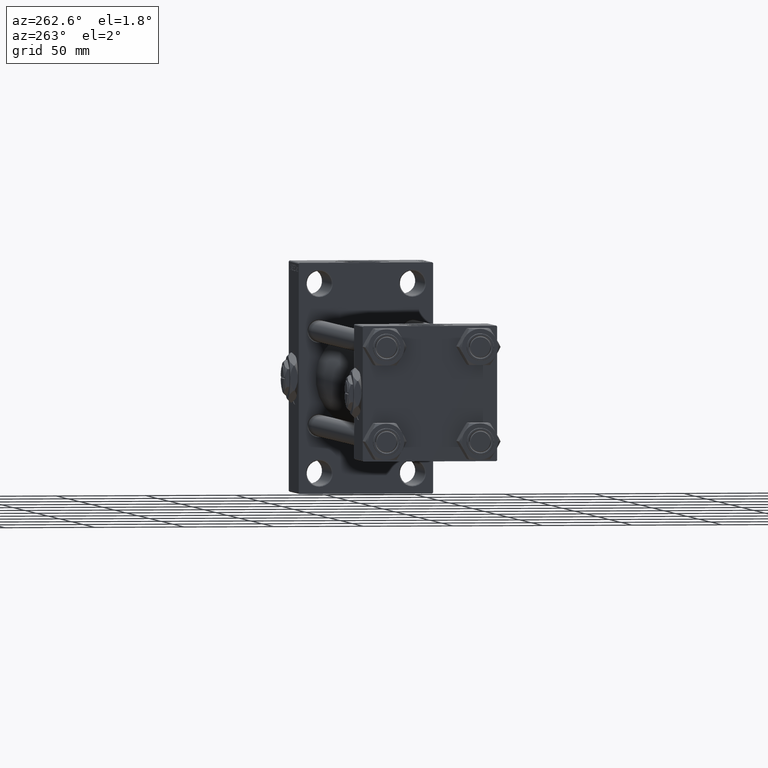
[diagram: clean part render]
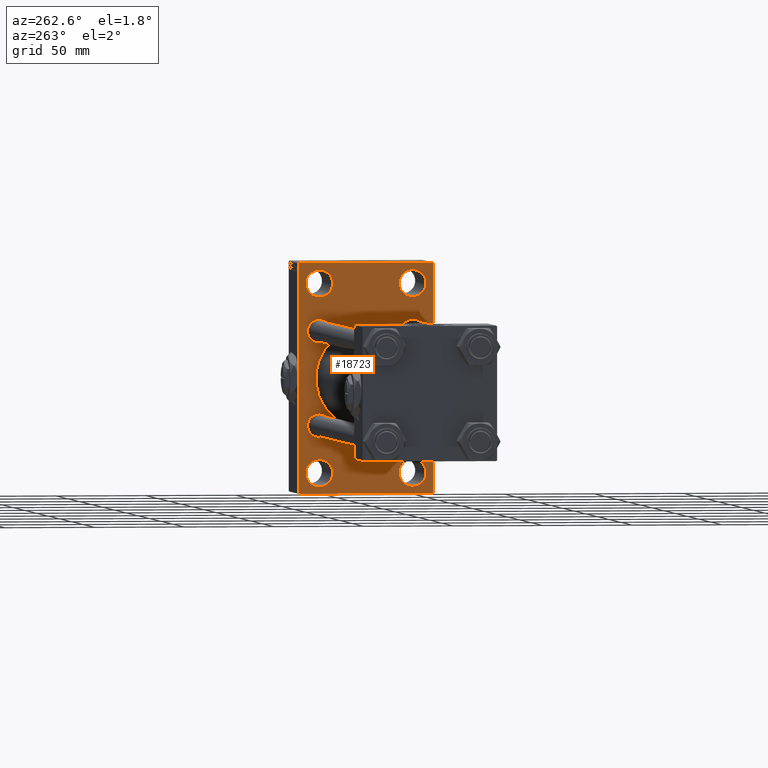
[diagram: same view with one face highlighted and labeled with its STEP entity id]
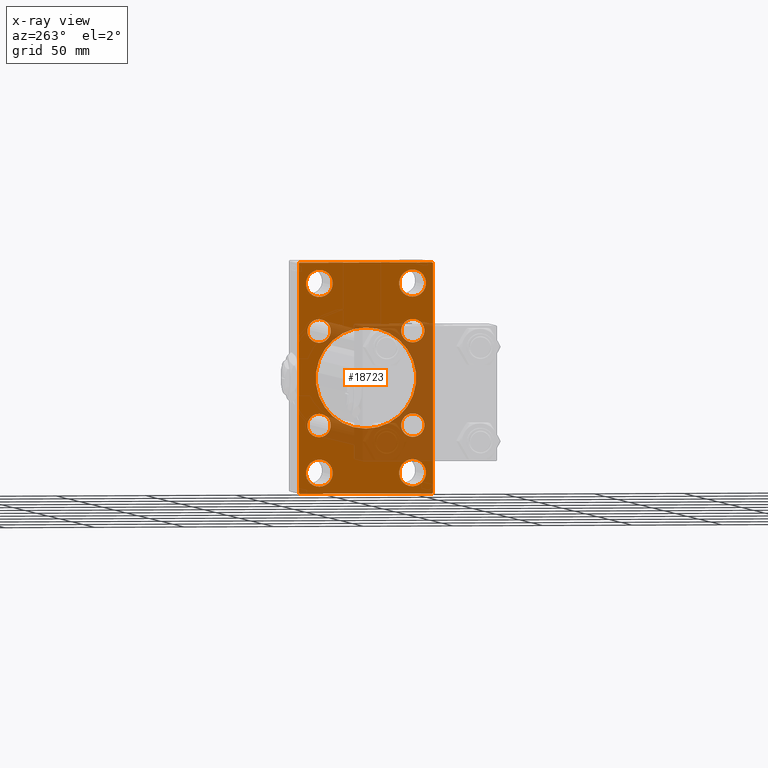
[diagram: x-ray of the same camera — body ghosted, the highlighted face saturated]
A machine part, auxiliary view. The second image highlights one B-rep face of the part: STEP entity #18723.
The next image is the same camera in x-ray: the body ghosted, the highlighted face saturated — about 30% of this face is hidden behind the body in this view.
In plain terms, the highlighted planar face has unit normal (-1, 0, 0).
Its self-contained STEP definition (entity closure, byte-faithful):
#217 = DIRECTION ( 'NONE',  ( 1.000000000000000000, 0.000000000000000000, 0.000000000000000000 ) ) ;
#381 = DIRECTION ( 'NONE',  ( 0.000000000000000000, 0.000000000000000000, 1.000000000000000000 ) ) ;
#444 = EDGE_LOOP ( 'NONE', ( #9979, #11166 ) ) ;
#739 = EDGE_CURVE ( 'NONE', #44991, #14748, #25745, .T. ) ;
#1747 = CARTESIAN_POINT ( 'NONE',  ( 274.9999999999999432, 26.14999999999999858, -32.65000000000001279 ) ) ;
#1751 = VECTOR ( 'NONE', #13129, 1000.000000000000114 ) ;
#2135 = EDGE_LOOP ( 'NONE', ( #35034, #27838 ) ) ;
#2242 = ORIENTED_EDGE ( 'NONE', *, *, #29462, .T. ) ;
#2479 = FACE_BOUND ( 'NONE', #23779, .T. ) ;
#2560 = CARTESIAN_POINT ( 'NONE',  ( 274.9999999999999432, 26.14999999999999858, 26.15000000000000213 ) ) ;
#2808 = DIRECTION ( 'NONE',  ( 0.000000000000000000, -1.000000000000000000, -1.850371707708594563E-16 ) ) ;
#3053 = ORIENTED_EDGE ( 'NONE', *, *, #14424, .T. ) ;
#3193 = EDGE_CURVE ( 'NONE', #5221, #41373, #15226, .T. ) ;
#3204 = CARTESIAN_POINT ( 'NONE',  ( 274.9999999999999432, -25.99999999999999645, -52.49999999999999289 ) ) ;
#3397 = VERTEX_POINT ( 'NONE', #1747 ) ;
#3499 = DIRECTION ( 'NONE',  ( 0.000000000000000000, 0.000000000000000000, 1.000000000000000000 ) ) ;
#4043 = ORIENTED_EDGE ( 'NONE', *, *, #739, .T. ) ;
#4131 = DIRECTION ( 'NONE',  ( 1.000000000000000000, -0.000000000000000000, 0.000000000000000000 ) ) ;
#4154 = DIRECTION ( 'NONE',  ( 0.000000000000000000, 0.000000000000000000, 1.000000000000000000 ) ) ;
#4407 = DIRECTION ( 'NONE',  ( 0.000000000000000000, -0.7071067811865574537, 0.7071067811865376918 ) ) ;
#4644 = CARTESIAN_POINT ( 'NONE',  ( 274.9999999999999432, 26.00000000000000000, -52.49999999999999289 ) ) ;
#5130 = DIRECTION ( 'NONE',  ( 1.000000000000000000, -0.000000000000000000, 0.000000000000000000 ) ) ;
#5221 = VERTEX_POINT ( 'NONE', #35504 ) ;
#5337 = VERTEX_POINT ( 'NONE', #43702 ) ;
#5732 = EDGE_CURVE ( 'NONE', #39294, #16948, #22376, .T. ) ;
#6065 = EDGE_LOOP ( 'NONE', ( #31943, #20936 ) ) ;
#6197 = CARTESIAN_POINT ( 'NONE',  ( 274.9999999999999432, 37.50000000000000000, 63.99999999999998579 ) ) ;
#6233 = PLANE ( 'NONE',  #28230 ) ;
#6478 = FACE_BOUND ( 'NONE', #43854, .T. ) ;
#6716 = CARTESIAN_POINT ( 'NONE',  ( 274.9999999999999432, -26.14999999999999147, 26.15000000000000924 ) ) ;
#6985 = CARTESIAN_POINT ( 'NONE',  ( 274.9999999999999432, 26.14999999999999858, 26.15000000000000213 ) ) ;
#7059 = CARTESIAN_POINT ( 'NONE',  ( 274.9999999999999432, 37.49999999999999289, -64.00000000000000000 ) ) ;
#7248 = ORIENTED_EDGE ( 'NONE', *, *, #13654, .T. ) ;
#7738 = VERTEX_POINT ( 'NONE', #42188 ) ;
#8182 = EDGE_LOOP ( 'NONE', ( #9194, #23161 ) ) ;
#8347 = CARTESIAN_POINT ( 'NONE',  ( 274.9999999999999432, 26.14999999999999858, -26.15000000000000213 ) ) ;
#8535 = CIRCLE ( 'NONE', #30807, 6.500000000000008882 ) ;
#9194 = ORIENTED_EDGE ( 'NONE', *, *, #46682, .T. ) ;
#9242 = DIRECTION ( 'NONE',  ( -0.000000000000000000, 0.000000000000000000, 1.000000000000000000 ) ) ;
#9285 = CARTESIAN_POINT ( 'NONE',  ( 274.9999999999999432, -25.99999999999999645, 52.50000000000000000 ) ) ;
#9315 = AXIS2_PLACEMENT_3D ( 'NONE', #8347, #23045, #31513 ) ;
#9705 = DIRECTION ( 'NONE',  ( 0.000000000000000000, 0.000000000000000000, 1.000000000000000000 ) ) ;
#9979 = ORIENTED_EDGE ( 'NONE', *, *, #10686, .T. ) ;
#10401 = VERTEX_POINT ( 'NONE', #23009 ) ;
#10686 = EDGE_CURVE ( 'NONE', #41829, #10401, #24132, .T. ) ;
#11166 = ORIENTED_EDGE ( 'NONE', *, *, #14369, .T. ) ;
#11309 = EDGE_LOOP ( 'NONE', ( #24708, #12634 ) ) ;
#11701 = CIRCLE ( 'NONE', #9315, 6.500000000000008882 ) ;
#11742 = CARTESIAN_POINT ( 'NONE',  ( 274.9999999999999432, -26.14999999999999147, -26.15000000000000924 ) ) ;
#11953 = ORIENTED_EDGE ( 'NONE', *, *, #40853, .T. ) ;
#11964 = DIRECTION ( 'NONE',  ( 1.000000000000000000, -0.000000000000000000, 0.000000000000000000 ) ) ;
#12164 = CARTESIAN_POINT ( 'NONE',  ( 274.9999999999999432, -26.14999999999999147, 19.65000000000000213 ) ) ;
#12358 = DIRECTION ( 'NONE',  ( 0.000000000000000000, 0.000000000000000000, 1.000000000000000000 ) ) ;
#12414 = DIRECTION ( 'NONE',  ( 0.000000000000000000, 0.000000000000000000, 1.000000000000000000 ) ) ;
#12543 = AXIS2_PLACEMENT_3D ( 'NONE', #3204, #48820, #9705 ) ;
#12634 = ORIENTED_EDGE ( 'NONE', *, *, #37262, .T. ) ;
#12885 = CARTESIAN_POINT ( 'NONE',  ( 274.9999999999999432, -25.99999999999999645, -59.99999999999994316 ) ) ;
#12930 = LINE ( 'NONE', #35391, #34749 ) ;
#13129 = DIRECTION ( 'NONE',  ( 0.000000000000000000, 0.7071067811865474617, -0.7071067811865474617 ) ) ;
#13246 = CARTESIAN_POINT ( 'NONE',  ( 274.9999999999999432, 8.269258236473784371E-16, -28.00000000000000000 ) ) ;
#13417 = VERTEX_POINT ( 'NONE', #34612 ) ;
#13647 = CARTESIAN_POINT ( 'NONE',  ( 274.9999999999999432, -26.14999999999999147, -26.15000000000000924 ) ) ;
#13654 = EDGE_CURVE ( 'NONE', #45117, #39294, #47291, .T. ) ;
#13781 = DIRECTION ( 'NONE',  ( 0.000000000000000000, 0.000000000000000000, 1.000000000000000000 ) ) ;
#14289 = CIRCLE ( 'NONE', #47750, 6.500000000000008882 ) ;
#14369 = EDGE_CURVE ( 'NONE', #10401, #41829, #45594, .T. ) ;
#14424 = EDGE_CURVE ( 'NONE', #44718, #7738, #20892, .T. ) ;
#14729 = CARTESIAN_POINT ( 'NONE',  ( 274.9999999999999432, -2.602085213965210642E-15, 28.00000000000000000 ) ) ;
#14748 = VERTEX_POINT ( 'NONE', #48959 ) ;
#14831 = VECTOR ( 'NONE', #23672, 1000.000000000000000 ) ;
#14935 = DIRECTION ( 'NONE',  ( 0.000000000000000000, 0.000000000000000000, 1.000000000000000000 ) ) ;
#15226 = CIRCLE ( 'NONE', #39127, 7.499999999999951150 ) ;
#15409 = DIRECTION ( 'NONE',  ( 0.000000000000000000, 0.000000000000000000, -1.000000000000000000 ) ) ;
#15834 = ORIENTED_EDGE ( 'NONE', *, *, #16264, .T. ) ;
#16080 = EDGE_CURVE ( 'NONE', #21273, #24825, #33716, .T. ) ;
#16134 = AXIS2_PLACEMENT_3D ( 'NONE', #19395, #24610, #24127 ) ;
#16264 = EDGE_CURVE ( 'NONE', #14748, #35852, #35557, .T. ) ;
#16451 = LINE ( 'NONE', #38660, #28325 ) ;
#16842 = CARTESIAN_POINT ( 'NONE',  ( 274.9999999999999432, -50.49999999999945999, -50.50000000000086686 ) ) ;
#16856 = EDGE_LOOP ( 'NONE', ( #4043, #15834, #34059, #28206, #17391, #7248, #35580, #29242 ) ) ;
#16948 = VERTEX_POINT ( 'NONE', #29414 ) ;
#16971 = VECTOR ( 'NONE', #4407, 999.9999999999998863 ) ;
#17028 = EDGE_CURVE ( 'NONE', #30360, #35745, #25730, .T. ) ;
#17188 = ORIENTED_EDGE ( 'NONE', *, *, #17372, .T. ) ;
#17347 = AXIS2_PLACEMENT_3D ( 'NONE', #13647, #29353, #17628 ) ;
#17372 = EDGE_CURVE ( 'NONE', #35745, #30360, #21814, .T. ) ;
#17391 = ORIENTED_EDGE ( 'NONE', *, *, #27687, .F. ) ;
#17628 = DIRECTION ( 'NONE',  ( 0.000000000000000000, 0.000000000000000000, 1.000000000000000000 ) ) ;
#17677 = CARTESIAN_POINT ( 'NONE',  ( 274.9999999999999432, 26.14999999999999858, 32.65000000000001990 ) ) ;
#17680 = FACE_BOUND ( 'NONE', #42406, .T. ) ;
#17990 = AXIS2_PLACEMENT_3D ( 'NONE', #34372, #217, #15409 ) ;
#18166 = DIRECTION ( 'NONE',  ( 1.000000000000000000, -0.000000000000000000, 0.000000000000000000 ) ) ;
#18216 = CARTESIAN_POINT ( 'NONE',  ( 274.9999999999999432, -26.14999999999999147, 26.15000000000000924 ) ) ;
#18433 = ORIENTED_EDGE ( 'NONE', *, *, #34951, .T. ) ;
#18519 = CARTESIAN_POINT ( 'NONE',  ( 274.9999999999999432, 26.00000000000000000, -45.00000000000004263 ) ) ;
#18711 = DIRECTION ( 'NONE',  ( 1.000000000000000000, -0.000000000000000000, 0.000000000000000000 ) ) ;
#18723 = ADVANCED_FACE ( 'NONE', ( #29404, #36637, #2479, #6478, #24924, #17680, #21672, #48348, #36144, #28912 ), #6233, .T. ) ;
#19395 = CARTESIAN_POINT ( 'NONE',  ( 274.9999999999999432, -25.99999999999999645, 52.50000000000000000 ) ) ;
#19807 = DIRECTION ( 'NONE',  ( 0.000000000000000000, 0.000000000000000000, -1.000000000000000000 ) ) ;
#20076 = VECTOR ( 'NONE', #37588, 1000.000000000000000 ) ;
#20892 = CIRCLE ( 'NONE', #39232, 7.499999999999951150 ) ;
#20936 = ORIENTED_EDGE ( 'NONE', *, *, #47563, .T. ) ;
#20971 = CARTESIAN_POINT ( 'NONE',  ( 274.9999999999999432, -37.49999999999999289, 63.49999999999991473 ) ) ;
#21148 = AXIS2_PLACEMENT_3D ( 'NONE', #30409, #11964, #3499 ) ;
#21273 = VERTEX_POINT ( 'NONE', #24906 ) ;
#21350 = CARTESIAN_POINT ( 'NONE',  ( 274.9999999999999432, 50.49999999999996447, 50.49999999999996447 ) ) ;
#21611 = CARTESIAN_POINT ( 'NONE',  ( 274.9999999999999432, -37.49999999999999289, -63.49999999999997158 ) ) ;
#21672 = FACE_BOUND ( 'NONE', #8182, .T. ) ;
#21814 = CIRCLE ( 'NONE', #32951, 6.500000000000008882 ) ;
#22098 = AXIS2_PLACEMENT_3D ( 'NONE', #30816, #34073, #4154 ) ;
#22133 = VERTEX_POINT ( 'NONE', #14729 ) ;
#22376 = LINE ( 'NONE', #6197, #20076 ) ;
#22617 = VERTEX_POINT ( 'NONE', #25785 ) ;
#23009 = CARTESIAN_POINT ( 'NONE',  ( 274.9999999999999432, -25.99999999999999645, 45.00000000000004974 ) ) ;
#23045 = DIRECTION ( 'NONE',  ( 1.000000000000000000, -0.000000000000000000, 0.000000000000000000 ) ) ;
#23064 = CARTESIAN_POINT ( 'NONE',  ( 274.9999999999999432, 26.14999999999999858, -26.15000000000000213 ) ) ;
#23161 = ORIENTED_EDGE ( 'NONE', *, *, #43208, .T. ) ;
#23672 = DIRECTION ( 'NONE',  ( 0.000000000000000000, 0.000000000000000000, -1.000000000000000000 ) ) ;
#23684 = CIRCLE ( 'NONE', #12543, 7.499999999999951150 ) ;
#23692 = DIRECTION ( 'NONE',  ( -0.000000000000000000, 0.7071067811865524577, 0.7071067811865426878 ) ) ;
#23779 = EDGE_LOOP ( 'NONE', ( #11953, #27171 ) ) ;
#23993 = DIRECTION ( 'NONE',  ( 0.000000000000000000, 0.000000000000000000, 1.000000000000000000 ) ) ;
#24127 = DIRECTION ( 'NONE',  ( 0.000000000000000000, 0.000000000000000000, 1.000000000000000000 ) ) ;
#24132 = CIRCLE ( 'NONE', #42421, 7.499999999999951150 ) ;
#24610 = DIRECTION ( 'NONE',  ( 1.000000000000000000, -0.000000000000000000, 0.000000000000000000 ) ) ;
#24708 = ORIENTED_EDGE ( 'NONE', *, *, #31367, .T. ) ;
#24825 = VERTEX_POINT ( 'NONE', #12885 ) ;
#24906 = CARTESIAN_POINT ( 'NONE',  ( 274.9999999999999432, -25.99999999999999645, -45.00000000000004263 ) ) ;
#24924 = FACE_BOUND ( 'NONE', #25245, .T. ) ;
#25107 = CARTESIAN_POINT ( 'NONE',  ( 274.9999999999999432, -25.99999999999999645, -52.49999999999999289 ) ) ;
#25227 = CIRCLE ( 'NONE', #44332, 6.500000000000008882 ) ;
#25245 = EDGE_LOOP ( 'NONE', ( #18433, #28687 ) ) ;
#25319 = DIRECTION ( 'NONE',  ( -0.000000000000000000, -0.7071067811865573427, -0.7071067811865378028 ) ) ;
#25646 = EDGE_CURVE ( 'NONE', #28860, #42251, #25227, .T. ) ;
#25730 = CIRCLE ( 'NONE', #32915, 6.500000000000008882 ) ;
#25745 = LINE ( 'NONE', #7059, #34254 ) ;
#25785 = CARTESIAN_POINT ( 'NONE',  ( 274.9999999999999432, -26.14999999999999147, -32.65000000000001990 ) ) ;
#25867 = EDGE_CURVE ( 'NONE', #28332, #5337, #16451, .T. ) ;
#25952 = DIRECTION ( 'NONE',  ( 0.000000000000000000, 0.000000000000000000, 1.000000000000000000 ) ) ;
#26284 = EDGE_CURVE ( 'NONE', #41576, #22133, #39502, .T. ) ;
#26402 = CARTESIAN_POINT ( 'NONE',  ( 274.9999999999999432, 37.50000000000000000, 63.49999999999992895 ) ) ;
#26521 = CARTESIAN_POINT ( 'NONE',  ( 274.9999999999999432, 26.14999999999999858, -19.64999999999999503 ) ) ;
#27171 = ORIENTED_EDGE ( 'NONE', *, *, #3193, .T. ) ;
#27632 = EDGE_CURVE ( 'NONE', #28332, #35852, #36106, .T. ) ;
#27687 = EDGE_CURVE ( 'NONE', #45117, #5337, #12930, .T. ) ;
#27783 = DIRECTION ( 'NONE',  ( 1.000000000000000000, 0.000000000000000000, 0.000000000000000000 ) ) ;
#27838 = ORIENTED_EDGE ( 'NONE', *, *, #26284, .T. ) ;
#28206 = ORIENTED_EDGE ( 'NONE', *, *, #25867, .T. ) ;
#28230 = AXIS2_PLACEMENT_3D ( 'NONE', #32161, #47859, #9242 ) ;
#28325 = VECTOR ( 'NONE', #23692, 1000.000000000000000 ) ;
#28332 = VERTEX_POINT ( 'NONE', #20971 ) ;
#28687 = ORIENTED_EDGE ( 'NONE', *, *, #25646, .T. ) ;
#28860 = VERTEX_POINT ( 'NONE', #12164 ) ;
#28912 = FACE_OUTER_BOUND ( 'NONE', #16856, .T. ) ;
#28931 = AXIS2_PLACEMENT_3D ( 'NONE', #25107, #40329, #44305 ) ;
#29122 = CARTESIAN_POINT ( 'NONE',  ( 274.9999999999999432, 36.99999999999999289, -64.00000000000000000 ) ) ;
#29242 = ORIENTED_EDGE ( 'NONE', *, *, #46434, .T. ) ;
#29353 = DIRECTION ( 'NONE',  ( 1.000000000000000000, -0.000000000000000000, 0.000000000000000000 ) ) ;
#29404 = FACE_BOUND ( 'NONE', #444, .T. ) ;
#29414 = CARTESIAN_POINT ( 'NONE',  ( 274.9999999999999432, 37.49999999999999289, -63.50000000000001421 ) ) ;
#29462 = EDGE_CURVE ( 'NONE', #7738, #44718, #43584, .T. ) ;
#30308 = CARTESIAN_POINT ( 'NONE',  ( 274.9999999999999432, -26.14999999999999147, 32.65000000000001990 ) ) ;
#30360 = VERTEX_POINT ( 'NONE', #17677 ) ;
#30409 = CARTESIAN_POINT ( 'NONE',  ( 274.9999999999999432, 26.00000000000000000, -52.49999999999999289 ) ) ;
#30427 = DIRECTION ( 'NONE',  ( 1.000000000000000000, -0.000000000000000000, 0.000000000000000000 ) ) ;
#30691 = CIRCLE ( 'NONE', #32289, 28.00000000000000000 ) ;
#30807 = AXIS2_PLACEMENT_3D ( 'NONE', #23064, #4131, #381 ) ;
#30816 = CARTESIAN_POINT ( 'NONE',  ( 274.9999999999999432, 26.00000000000000000, 52.49999999999999289 ) ) ;
#31367 = EDGE_CURVE ( 'NONE', #13417, #22617, #34098, .T. ) ;
#31373 = CARTESIAN_POINT ( 'NONE',  ( 274.9999999999999432, 26.00000000000000000, 52.49999999999999289 ) ) ;
#31513 = DIRECTION ( 'NONE',  ( 0.000000000000000000, 0.000000000000000000, 1.000000000000000000 ) ) ;
#31943 = ORIENTED_EDGE ( 'NONE', *, *, #16080, .T. ) ;
#32161 = CARTESIAN_POINT ( 'NONE',  ( 274.9999999999999432, 0.000000000000000000, 0.000000000000000000 ) ) ;
#32203 = DIRECTION ( 'NONE',  ( 1.000000000000000000, -0.000000000000000000, 0.000000000000000000 ) ) ;
#32289 = AXIS2_PLACEMENT_3D ( 'NONE', #42973, #27783, #19807 ) ;
#32558 = LINE ( 'NONE', #47769, #33175 ) ;
#32915 = AXIS2_PLACEMENT_3D ( 'NONE', #6985, #49098, #14935 ) ;
#32951 = AXIS2_PLACEMENT_3D ( 'NONE', #2560, #36954, #13781 ) ;
#33033 = VERTEX_POINT ( 'NONE', #26521 ) ;
#33175 = VECTOR ( 'NONE', #25319, 1000.000000000000000 ) ;
#33386 = DIRECTION ( 'NONE',  ( 0.000000000000000000, 0.000000000000000000, 1.000000000000000000 ) ) ;
#33716 = CIRCLE ( 'NONE', #28931, 7.499999999999951150 ) ;
#34059 = ORIENTED_EDGE ( 'NONE', *, *, #27632, .F. ) ;
#34073 = DIRECTION ( 'NONE',  ( 1.000000000000000000, -0.000000000000000000, 0.000000000000000000 ) ) ;
#34098 = CIRCLE ( 'NONE', #17347, 6.500000000000008882 ) ;
#34254 = VECTOR ( 'NONE', #2808, 1000.000000000000000 ) ;
#34372 = CARTESIAN_POINT ( 'NONE',  ( 274.9999999999999432, -2.602085213965210642E-15, 0.000000000000000000 ) ) ;
#34612 = CARTESIAN_POINT ( 'NONE',  ( 274.9999999999999432, -26.14999999999999147, -19.65000000000000213 ) ) ;
#34749 = VECTOR ( 'NONE', #43341, 1000.000000000000000 ) ;
#34908 = CARTESIAN_POINT ( 'NONE',  ( 274.9999999999999432, 26.00000000000000000, 59.99999999999994316 ) ) ;
#34930 = DIRECTION ( 'NONE',  ( 0.000000000000000000, 0.000000000000000000, 1.000000000000000000 ) ) ;
#34951 = EDGE_CURVE ( 'NONE', #42251, #28860, #14289, .T. ) ;
#35034 = ORIENTED_EDGE ( 'NONE', *, *, #43841, .T. ) ;
#35391 = CARTESIAN_POINT ( 'NONE',  ( 274.9999999999999432, 37.50000000000000000, 63.99999999999998579 ) ) ;
#35504 = CARTESIAN_POINT ( 'NONE',  ( 274.9999999999999432, 26.00000000000000000, -59.99999999999994316 ) ) ;
#35557 = LINE ( 'NONE', #16842, #16971 ) ;
#35580 = ORIENTED_EDGE ( 'NONE', *, *, #5732, .T. ) ;
#35745 = VERTEX_POINT ( 'NONE', #38868 ) ;
#35852 = VERTEX_POINT ( 'NONE', #21611 ) ;
#36106 = LINE ( 'NONE', #47333, #14831 ) ;
#36144 = FACE_BOUND ( 'NONE', #2135, .T. ) ;
#36365 = CARTESIAN_POINT ( 'NONE',  ( 274.9999999999999432, -25.99999999999999645, 59.99999999999995026 ) ) ;
#36637 = FACE_BOUND ( 'NONE', #6065, .T. ) ;
#36954 = DIRECTION ( 'NONE',  ( 1.000000000000000000, -0.000000000000000000, 0.000000000000000000 ) ) ;
#37262 = EDGE_CURVE ( 'NONE', #22617, #13417, #43012, .T. ) ;
#37588 = DIRECTION ( 'NONE',  ( 0.000000000000000000, -5.421010862427522170E-17, -1.000000000000000000 ) ) ;
#38381 = ORIENTED_EDGE ( 'NONE', *, *, #17028, .T. ) ;
#38660 = CARTESIAN_POINT ( 'NONE',  ( 274.9999999999999432, -50.49999999999969447, 50.50000000000039080 ) ) ;
#38868 = CARTESIAN_POINT ( 'NONE',  ( 274.9999999999999432, 26.14999999999999858, 19.64999999999999147 ) ) ;
#39127 = AXIS2_PLACEMENT_3D ( 'NONE', #4644, #5130, #12358 ) ;
#39232 = AXIS2_PLACEMENT_3D ( 'NONE', #31373, #46572, #12414 ) ;
#39294 = VERTEX_POINT ( 'NONE', #26402 ) ;
#39502 = CIRCLE ( 'NONE', #17990, 28.00000000000000000 ) ;
#40329 = DIRECTION ( 'NONE',  ( 1.000000000000000000, -0.000000000000000000, 0.000000000000000000 ) ) ;
#40853 = EDGE_CURVE ( 'NONE', #41373, #5221, #42651, .T. ) ;
#41373 = VERTEX_POINT ( 'NONE', #18519 ) ;
#41576 = VERTEX_POINT ( 'NONE', #13246 ) ;
#41829 = VERTEX_POINT ( 'NONE', #36365 ) ;
#42188 = CARTESIAN_POINT ( 'NONE',  ( 274.9999999999999432, 26.00000000000000000, 45.00000000000004263 ) ) ;
#42251 = VERTEX_POINT ( 'NONE', #30308 ) ;
#42406 = EDGE_LOOP ( 'NONE', ( #38381, #17188 ) ) ;
#42421 = AXIS2_PLACEMENT_3D ( 'NONE', #9285, #32203, #23993 ) ;
#42651 = CIRCLE ( 'NONE', #21148, 7.499999999999951150 ) ;
#42973 = CARTESIAN_POINT ( 'NONE',  ( 274.9999999999999432, -2.602085213965210642E-15, 0.000000000000000000 ) ) ;
#43012 = CIRCLE ( 'NONE', #43863, 6.500000000000008882 ) ;
#43208 = EDGE_CURVE ( 'NONE', #3397, #33033, #11701, .T. ) ;
#43341 = DIRECTION ( 'NONE',  ( 0.000000000000000000, -1.000000000000000000, -1.850371707708594563E-16 ) ) ;
#43584 = CIRCLE ( 'NONE', #22098, 7.499999999999951150 ) ;
#43702 = CARTESIAN_POINT ( 'NONE',  ( 274.9999999999999432, -36.99999999999992895, 63.99999999999997158 ) ) ;
#43720 = CARTESIAN_POINT ( 'NONE',  ( 274.9999999999999432, 36.99999999999994316, 63.99999999999998579 ) ) ;
#43841 = EDGE_CURVE ( 'NONE', #22133, #41576, #30691, .T. ) ;
#43854 = EDGE_LOOP ( 'NONE', ( #3053, #2242 ) ) ;
#43863 = AXIS2_PLACEMENT_3D ( 'NONE', #11742, #18711, #34930 ) ;
#44305 = DIRECTION ( 'NONE',  ( 0.000000000000000000, 0.000000000000000000, 1.000000000000000000 ) ) ;
#44332 = AXIS2_PLACEMENT_3D ( 'NONE', #18216, #30427, #25952 ) ;
#44718 = VERTEX_POINT ( 'NONE', #34908 ) ;
#44991 = VERTEX_POINT ( 'NONE', #29122 ) ;
#45117 = VERTEX_POINT ( 'NONE', #43720 ) ;
#45594 = CIRCLE ( 'NONE', #16134, 7.499999999999951150 ) ;
#46434 = EDGE_CURVE ( 'NONE', #16948, #44991, #32558, .T. ) ;
#46572 = DIRECTION ( 'NONE',  ( 1.000000000000000000, -0.000000000000000000, 0.000000000000000000 ) ) ;
#46682 = EDGE_CURVE ( 'NONE', #33033, #3397, #8535, .T. ) ;
#47291 = LINE ( 'NONE', #21350, #1751 ) ;
#47333 = CARTESIAN_POINT ( 'NONE',  ( 274.9999999999999432, -37.49999999999999289, 63.99999999999997158 ) ) ;
#47563 = EDGE_CURVE ( 'NONE', #24825, #21273, #23684, .T. ) ;
#47750 = AXIS2_PLACEMENT_3D ( 'NONE', #6716, #18166, #33386 ) ;
#47769 = CARTESIAN_POINT ( 'NONE',  ( 274.9999999999999432, 50.49999999999948841, -50.50000000000088107 ) ) ;
#47859 = DIRECTION ( 'NONE',  ( -1.000000000000000000, 0.000000000000000000, -0.000000000000000000 ) ) ;
#48348 = FACE_BOUND ( 'NONE', #11309, .T. ) ;
#48820 = DIRECTION ( 'NONE',  ( 1.000000000000000000, -0.000000000000000000, 0.000000000000000000 ) ) ;
#48959 = CARTESIAN_POINT ( 'NONE',  ( 274.9999999999999432, -36.99999999999993605, -64.00000000000001421 ) ) ;
#49098 = DIRECTION ( 'NONE',  ( 1.000000000000000000, -0.000000000000000000, 0.000000000000000000 ) ) ;